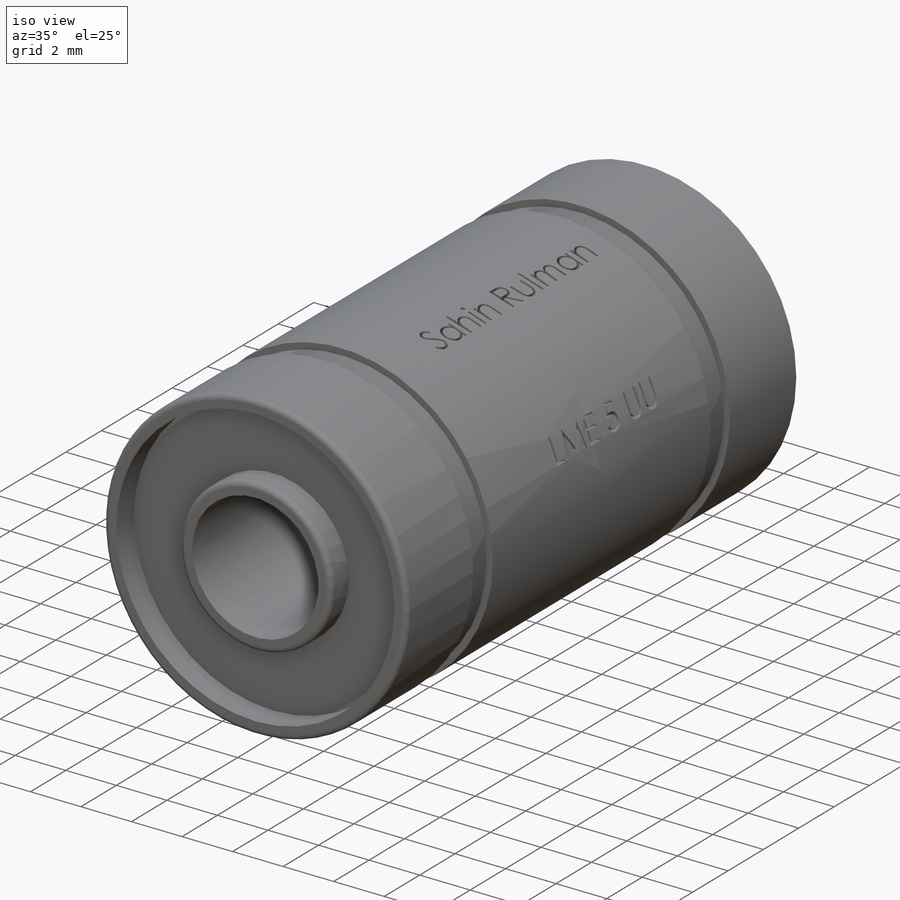
[diagram: iso view]
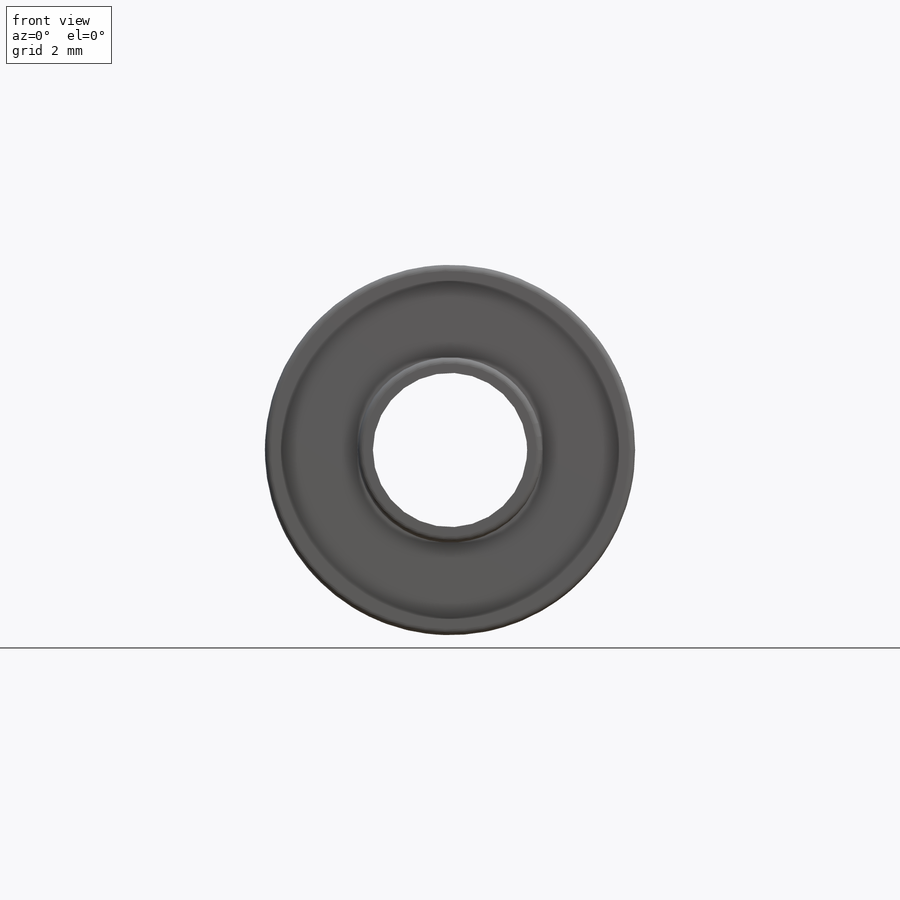
[diagram: front view]
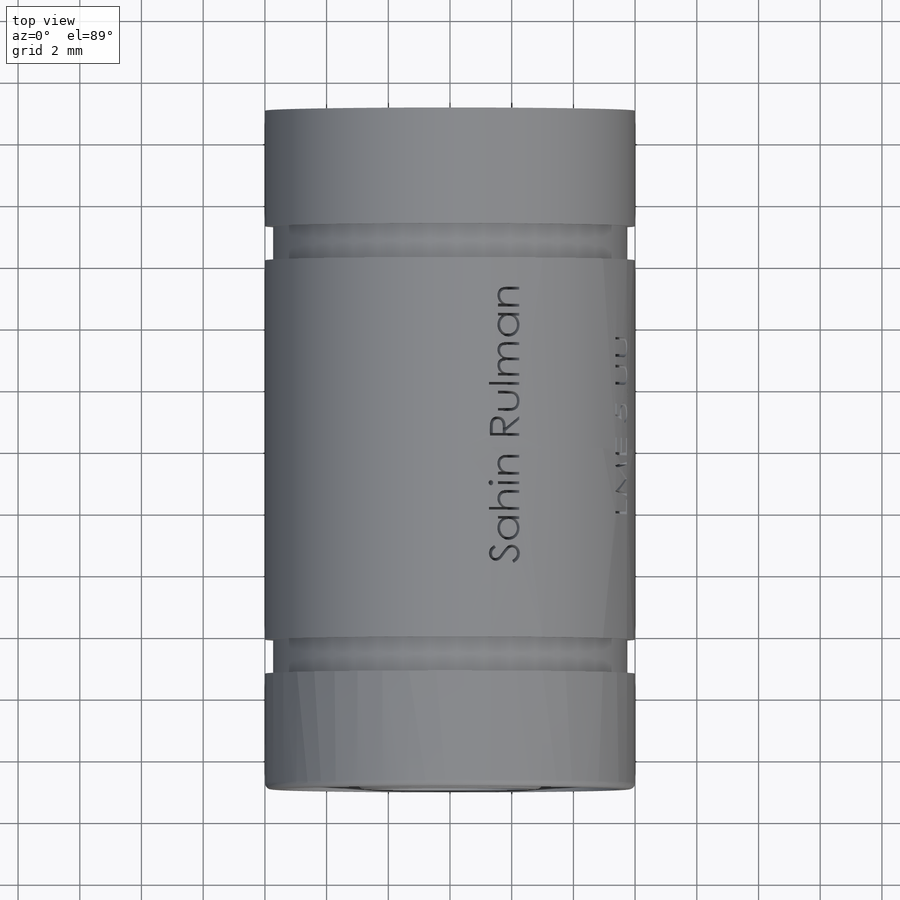
[diagram: top view]
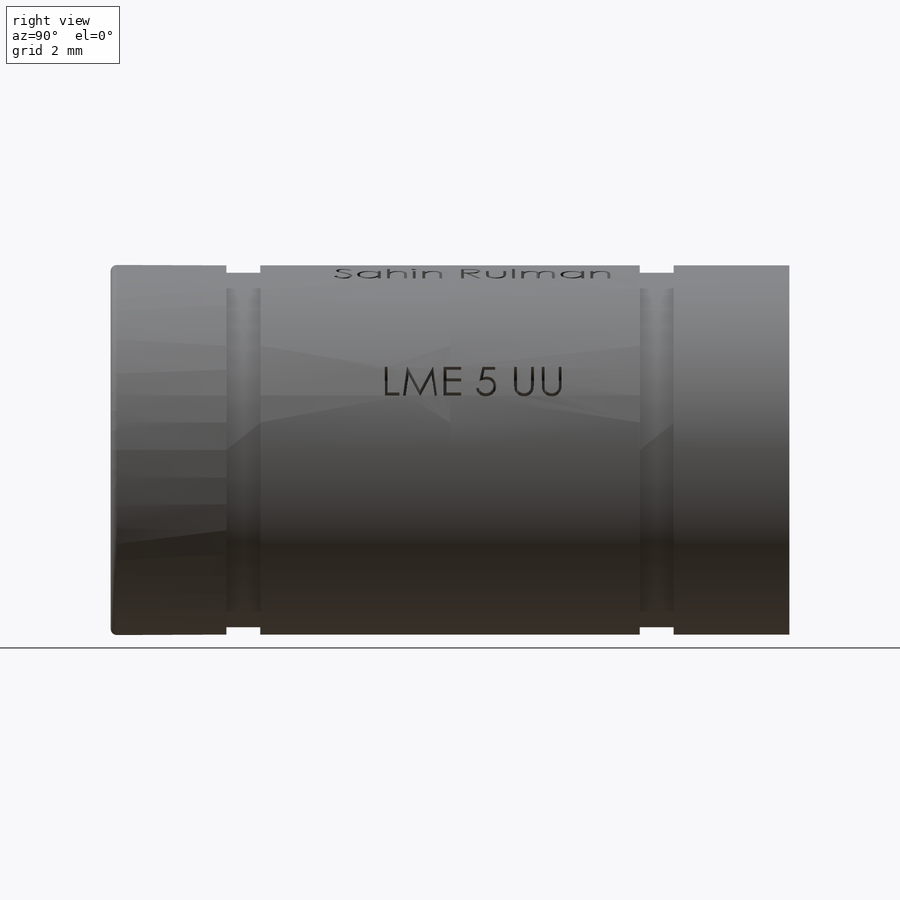
[diagram: right view]
SOLIDWORKS PART (.sldprt)
format: sldprt  version: not decoded by parser v0  size: 854,528 bytes
history: native  units: mm
features: sketch x4, material x1, extrude x1, cut_revolve x1, plane x1, cut_extrude x1, fillet x1, mirror x1 (+11 scaffold rows collapsed)
feature tree (22):
  scaffold x11  (default folders/planes/origin — collapsed)
  material  "Material <not specified>"
  sketch  "Sketch1"  dims[D1=12.0mm D2=5.0mm]
  extrude  "Boss-Extrude1"  Depth=22mm
  sketch  "Sketch2"  dims[D1=5.75mm D2=5.75mm D3=7.25mm D4=7.25mm D5=1.1mm D6=1.1mm]
  cut_revolve  "Cut-Revolve1"  Angle=360deg
  plane  "Plane2"  Offset=7mm
  sketch  "Sketch3"
  sketch  "Sketch4"  dims[D1=11.0mm]
  cut_extrude  "Cut-Extrude2"  Depth=1mm
  fillet  "Fillet1"  Radius=0.2mm
  mirror  "Mirror4"
decode coverage: 7 of 9 modeling features carry decoded parameters
note: suppression state not decoded; provenance and decode notes live in map.json
